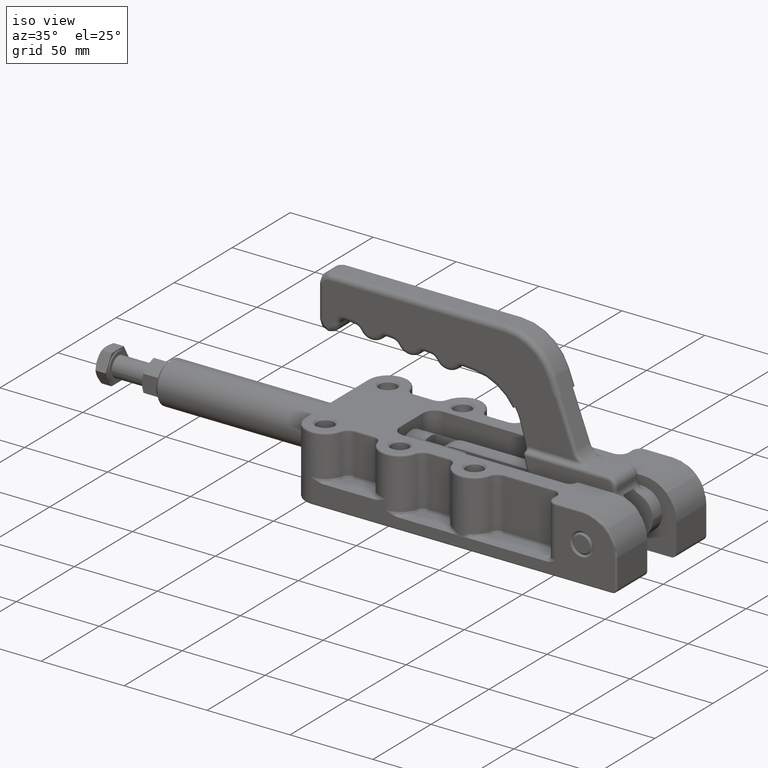
[diagram: clean part render]
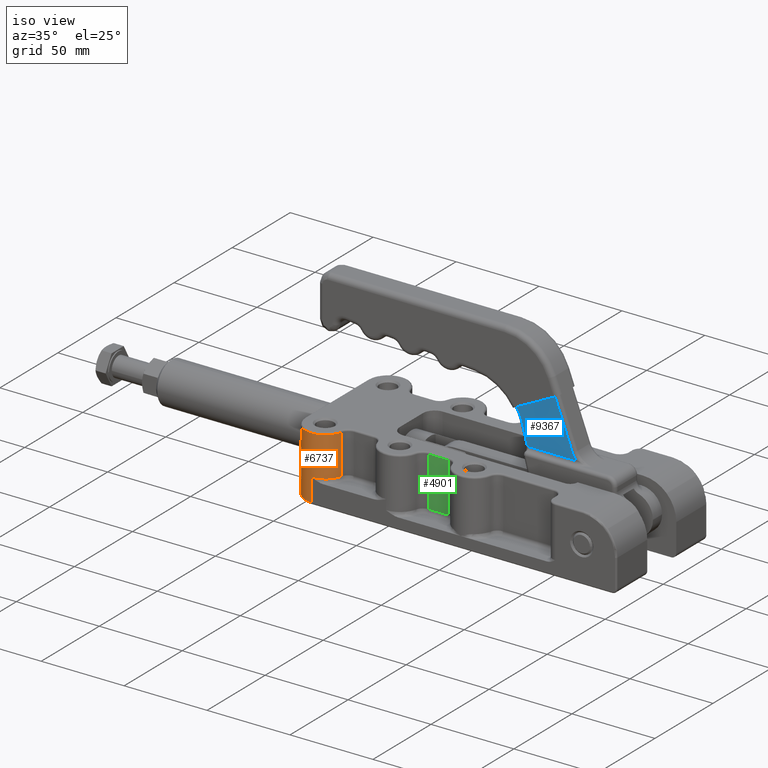
[diagram: same view with three faces highlighted in distinct colors, each labeled with its STEP entity id]
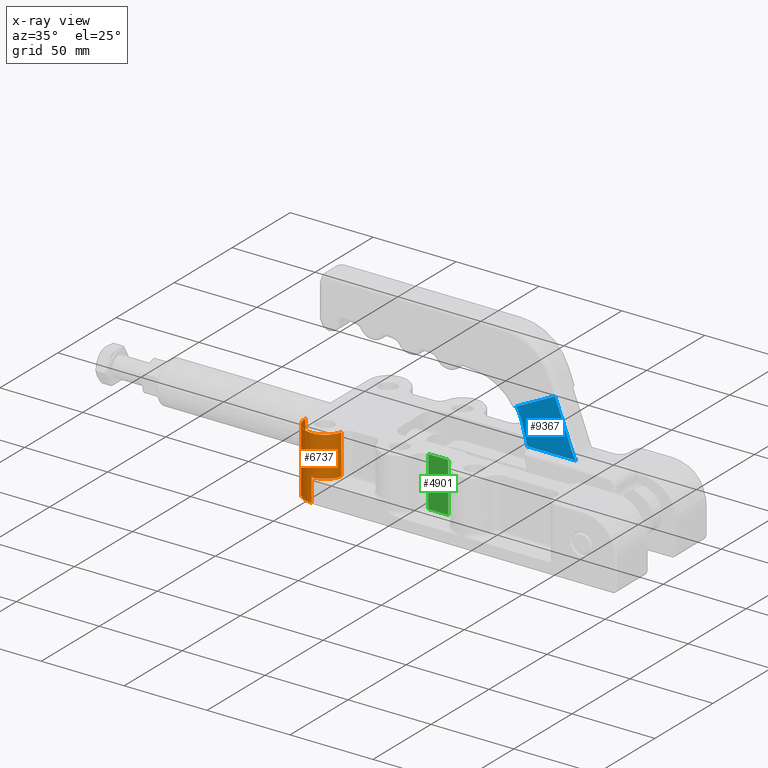
[diagram: x-ray of the same camera — body ghosted, the three highlighted faces saturated]
A machine part, iso view with three faces highlighted in distinct colors.
The next image is the same camera in x-ray (body ghosted, the three faces saturated) — at least one of them is partly hidden behind the body in this view.
Their STEP definitions:

[orange] entity #6737 — the highlighted cylindrical surface (edge-blend (fillet) strip) has radius 12 mm, axis along (0, 0, 1).
#3755=CARTESIAN_POINT('',(22.656523630845822,26.109410281614451,15.0));
#3756=VERTEX_POINT('',#3755);
#3764=CARTESIAN_POINT('',(10.993680172835628,16.933960241156040,14.999999999999998));
#3765=VERTEX_POINT('',#3764);
#3766=CARTESIAN_POINT('',(10.993680172835628,28.933960241156029,14.999999999999998));
#3767=DIRECTION('',(0.0,0.0,-1.0));
#3768=DIRECTION('',(0.618312557168648,-0.785932300931554,0.0));
#3769=AXIS2_PLACEMENT_3D('',#3766,#3767,#3768);
#3770=CIRCLE('',#3769,11.999999999999988);
#3771=EDGE_CURVE('',#3756,#3765,#3770,.T.);
#5122=CARTESIAN_POINT('',(10.993680172835640,16.933960241156040,1.0));
#5123=VERTEX_POINT('',#5122);
#5145=CARTESIAN_POINT('',(-1.006319827164361,28.933960241156036,1.0));
#5146=VERTEX_POINT('',#5145);
#5164=CARTESIAN_POINT('',(10.993680172835628,28.933960241156029,1.0));
#5165=DIRECTION('',(0.0,0.0,-1.000000000000000));
#5166=DIRECTION('',(-0.707106781186547,-0.707106781186548,0.0));
#5167=AXIS2_PLACEMENT_3D('',#5164,#5165,#5166);
#5168=CIRCLE('',#5167,11.999999999999989);
#5169=EDGE_CURVE('',#5123,#5146,#5168,.T.);
#5494=CARTESIAN_POINT('',(22.656523630845822,26.109410281614451,39.0));
#5495=VERTEX_POINT('',#5494);
#5562=CARTESIAN_POINT('',(-1.006319827164361,28.933960241156036,39.0));
#5563=VERTEX_POINT('',#5562);
#5571=CARTESIAN_POINT('',(10.993680172835628,28.933960241156029,39.0));
#5572=DIRECTION('',(0.0,0.0,1.0));
#5573=DIRECTION('',(-0.118525057475502,-0.992951061608994,0.0));
#5574=AXIS2_PLACEMENT_3D('',#5571,#5572,#5573);
#5575=CIRCLE('',#5574,11.999999999999988);
#5576=EDGE_CURVE('',#5563,#5495,#5575,.T.);
#6661=CARTESIAN_POINT('',(10.993680172835640,16.933960241156040,1.0));
#6662=DIRECTION('',(0.0,0.0,1.0));
#6663=VECTOR('',#6662,13.999999999999998);
#6664=LINE('',#6661,#6663);
#6665=EDGE_CURVE('',#5123,#3765,#6664,.T.);
#6714=CARTESIAN_POINT('',(10.993680172835628,28.933960241156029,0.0));
#6715=DIRECTION('',(0.0,0.0,1.0));
#6716=DIRECTION('',(-1.0,0.0,0.0));
#6717=AXIS2_PLACEMENT_3D('',#6714,#6715,#6716);
#6718=CYLINDRICAL_SURFACE('',#6717,11.999999999999989);
#6719=ORIENTED_EDGE('',*,*,#3771,.F.);
#6720=CARTESIAN_POINT('',(22.656523630845822,26.109410281614451,39.0));
#6721=DIRECTION('',(0.0,0.0,-1.0));
#6722=VECTOR('',#6721,24.0);
#6723=LINE('',#6720,#6722);
#6724=EDGE_CURVE('',#5495,#3756,#6723,.T.);
#6725=ORIENTED_EDGE('',*,*,#6724,.F.);
#6726=ORIENTED_EDGE('',*,*,#5576,.F.);
#6727=CARTESIAN_POINT('',(-1.006319827164361,28.933960241156036,1.0));
#6728=DIRECTION('',(0.0,0.0,1.0));
#6729=VECTOR('',#6728,38.0);
#6730=LINE('',#6727,#6729);
#6731=EDGE_CURVE('',#5146,#5563,#6730,.T.);
#6732=ORIENTED_EDGE('',*,*,#6731,.F.);
#6733=ORIENTED_EDGE('',*,*,#5169,.F.);
#6734=ORIENTED_EDGE('',*,*,#6665,.T.);
#6735=EDGE_LOOP('',(#6719,#6725,#6726,#6732,#6733,#6734));
#6736=FACE_OUTER_BOUND('',#6735,.T.);
#6737=ADVANCED_FACE('',(#6736),#6718,.T.);

[blue] entity #9367 — the highlighted planar face has unit normal (-0, -1, 0).
#9301=CARTESIAN_POINT('',(73.733598996159699,-6.999999999999741,77.692730363361107));
#9302=DIRECTION('',(0.0,-1.0,0.0));
#9303=DIRECTION('',(1.0,0.0,0.0));
#9304=AXIS2_PLACEMENT_3D('',#9301,#9302,#9303);
#9305=PLANE('',#9304);
#9306=CARTESIAN_POINT('',(136.504812944063420,-6.999999999999558,80.003014795146157));
#9307=VERTEX_POINT('',#9306);
#9308=CARTESIAN_POINT('',(113.165055199477180,-7.000000000000979,68.252848509635555));
#9309=VERTEX_POINT('',#9308);
#9310=CARTESIAN_POINT('',(136.504812944063420,-6.999999999999558,80.003014795146157));
#9311=DIRECTION('',(-0.893194798136126,-5.438386E-014,-0.449669937379147));
#9312=VECTOR('',#9311,26.130646745021892);
#9313=LINE('',#9310,#9312);
#9314=EDGE_CURVE('',#9307,#9309,#9313,.T.);
#9315=ORIENTED_EDGE('',*,*,#9314,.T.);
#9316=CARTESIAN_POINT('',(116.844270382359500,-6.999999999999611,59.727181742633597));
#9317=VERTEX_POINT('',#9316);
#9318=CARTESIAN_POINT('',(85.934643941110693,-6.999999999998380,51.444972299355136));
#9319=DIRECTION('',(0.0,-1.0,0.0));
#9320=DIRECTION('',(1.0,0.0,0.0));
#9321=AXIS2_PLACEMENT_3D('',#9318,#9319,#9320);
#9322=CIRCLE('',#9321,31.999999999997218);
#9323=EDGE_CURVE('',#9309,#9317,#9322,.F.);
#9324=ORIENTED_EDGE('',*,*,#9323,.T.);
#9325=CARTESIAN_POINT('',(119.921979581936780,-6.999999999999600,48.241014638889169));
#9326=VERTEX_POINT('',#9325);
#9327=CARTESIAN_POINT('',(116.844270382359500,-6.999999999999611,59.727181742633597));
#9328=DIRECTION('',(0.258819045102524,8.962932E-016,-0.965925826289067));
#9329=VECTOR('',#9328,11.891355206716488);
#9330=LINE('',#9327,#9329);
#9331=EDGE_CURVE('',#9317,#9326,#9330,.T.);
#9332=ORIENTED_EDGE('',*,*,#9331,.T.);
#9333=CARTESIAN_POINT('',(120.924381433300030,-6.999999999999597,48.372983346207391));
#9334=VERTEX_POINT('',#9333);
#9335=CARTESIAN_POINT('',(120.924381433299710,-6.999999999999409,44.500000000006636));
#9336=DIRECTION('',(0.0,-1.0,0.0));
#9337=DIRECTION('',(0.0,0.0,1.0));
#9338=AXIS2_PLACEMENT_3D('',#9335,#9336,#9337);
#9339=CIRCLE('',#9338,3.872983346200747);
#9340=EDGE_CURVE('',#9334,#9326,#9339,.T.);
#9341=ORIENTED_EDGE('',*,*,#9340,.F.);
#9342=CARTESIAN_POINT('',(149.397433423261220,-6.999999999999514,48.372983346207377));
#9343=VERTEX_POINT('',#9342);
#9344=CARTESIAN_POINT('',(149.397433423261220,-6.999999999999514,48.372983346207377));
#9345=DIRECTION('',(-1.0,0.0,0.0));
#9346=VECTOR('',#9345,28.473051989961192);
#9347=LINE('',#9344,#9346);
#9348=EDGE_CURVE('',#9343,#9334,#9347,.T.);
#9349=ORIENTED_EDGE('',*,*,#9348,.F.);
#9350=CARTESIAN_POINT('',(147.002792678176090,-6.999999999999523,52.253892174824543));
#9351=VERTEX_POINT('',#9350);
#9352=CARTESIAN_POINT('',(158.226453771467020,-7.000000000002276,56.500000000005180));
#9353=DIRECTION('',(0.0,-1.0,-1.098947E-013));
#9354=DIRECTION('',(1.0,0.0,0.0));
#9355=AXIS2_PLACEMENT_3D('',#9352,#9353,#9354);
#9356=CIRCLE('',#9355,12.000000000006146);
#9357=EDGE_CURVE('',#9343,#9351,#9356,.F.);
#9358=ORIENTED_EDGE('',*,*,#9357,.T.);
#9359=CARTESIAN_POINT('',(147.002792678176090,-6.999999999999523,52.253892174824543));
#9360=DIRECTION('',(-0.353842318764579,-1.167532E-015,0.935305091107338));
#9361=VECTOR('',#9360,29.668525152010595);
#9362=LINE('',#9359,#9361);
#9363=EDGE_CURVE('',#9351,#9307,#9362,.T.);
#9364=ORIENTED_EDGE('',*,*,#9363,.T.);
#9365=EDGE_LOOP('',(#9315,#9324,#9332,#9341,#9349,#9358,#9364));
#9366=FACE_OUTER_BOUND('',#9365,.T.);
#9367=ADVANCED_FACE('',(#9366),#9305,.T.);

[green] entity #4901 — the highlighted planar face has unit normal (0, 1, 0).
#1803=CARTESIAN_POINT('',(72.522361565514643,29.932514465138986,39.0));
#1804=VERTEX_POINT('',#1803);
#1812=CARTESIAN_POINT('',(84.477638434485385,29.932514465138969,39.0));
#1813=VERTEX_POINT('',#1812);
#1814=CARTESIAN_POINT('',(72.522361565514643,29.932514465138986,39.0));
#1815=DIRECTION('',(1.0,0.0,0.0));
#1816=VECTOR('',#1815,11.955276868970742);
#1817=LINE('',#1814,#1816);
#1818=EDGE_CURVE('',#1804,#1813,#1817,.T.);
#2051=CARTESIAN_POINT('',(84.477638434485385,29.932514465138969,8.999999999999995));
#2052=VERTEX_POINT('',#2051);
#2060=CARTESIAN_POINT('',(72.522361565514643,29.932514465138986,8.999999999999995));
#2061=VERTEX_POINT('',#2060);
#2062=CARTESIAN_POINT('',(84.477638434485385,29.932514465138969,8.999999999999995));
#2063=DIRECTION('',(-1.0,0.0,0.0));
#2064=VECTOR('',#2063,11.955276868970742);
#2065=LINE('',#2062,#2064);
#2066=EDGE_CURVE('',#2052,#2061,#2065,.T.);
#4861=CARTESIAN_POINT('',(72.522361565514643,29.932514465138986,39.0));
#4862=DIRECTION('',(0.0,0.0,-1.0));
#4863=VECTOR('',#4862,30.000000000000007);
#4864=LINE('',#4861,#4863);
#4865=EDGE_CURVE('',#1804,#2061,#4864,.T.);
#4885=CARTESIAN_POINT('',(84.477638434485385,29.932514465138969,40.0));
#4886=DIRECTION('',(0.0,1.0,0.0));
#4887=DIRECTION('',(0.0,0.0,1.0));
#4888=AXIS2_PLACEMENT_3D('',#4885,#4886,#4887);
#4889=PLANE('',#4888);
#4890=ORIENTED_EDGE('',*,*,#2066,.F.);
#4891=CARTESIAN_POINT('',(84.477638434485385,29.932514465138969,39.0));
#4892=DIRECTION('',(0.0,0.0,-1.0));
#4893=VECTOR('',#4892,30.000000000000007);
#4894=LINE('',#4891,#4893);
#4895=EDGE_CURVE('',#1813,#2052,#4894,.T.);
#4896=ORIENTED_EDGE('',*,*,#4895,.F.);
#4897=ORIENTED_EDGE('',*,*,#1818,.F.);
#4898=ORIENTED_EDGE('',*,*,#4865,.T.);
#4899=EDGE_LOOP('',(#4890,#4896,#4897,#4898));
#4900=FACE_OUTER_BOUND('',#4899,.T.);
#4901=ADVANCED_FACE('',(#4900),#4889,.F.);